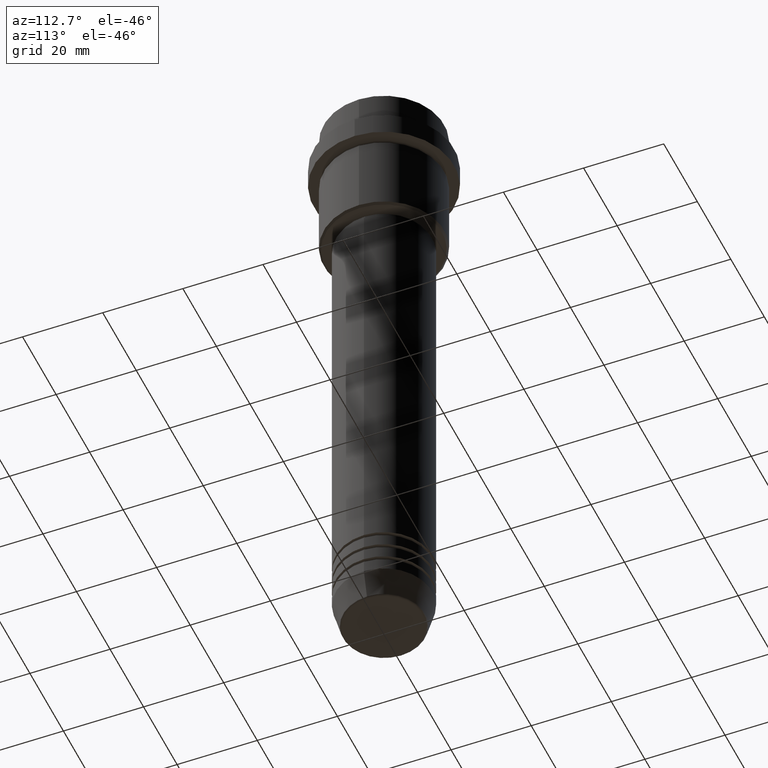
[diagram: clean part render]
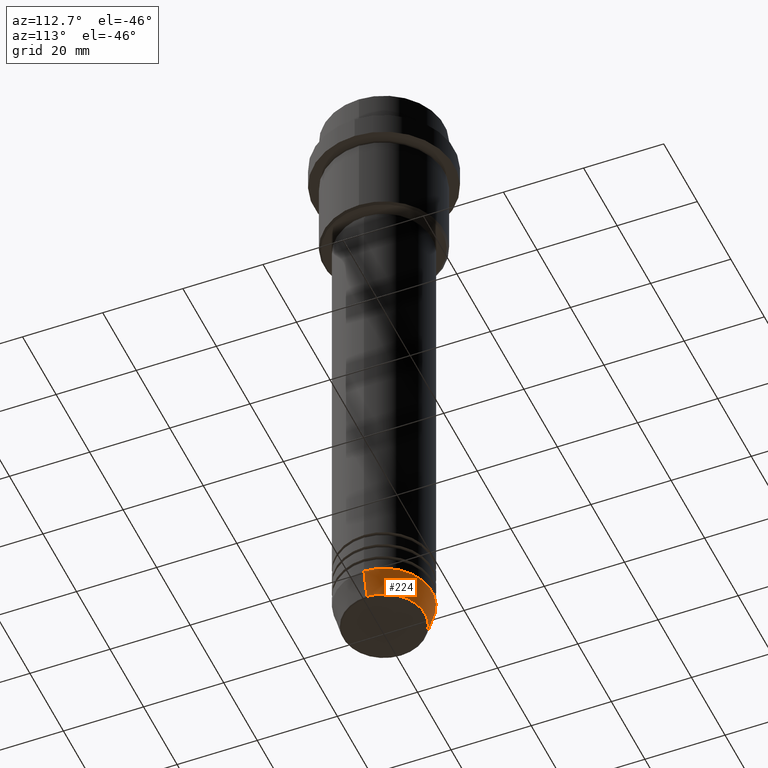
[diagram: same view with one face highlighted and labeled with its STEP entity id]
A machine part, auxiliary view. The second image highlights one B-rep face of the part: STEP entity #224.
In plain terms, the highlighted conical surface has half-angle 15 deg.
Its self-contained STEP definition (entity closure, byte-faithful):
#16 = VERTEX_POINT ( 'NONE', #798 ) ;
#50 = DIRECTION ( 'NONE',  ( 0.2588190451025213501, 0.000000000000000000, 0.9659258262890680902 ) ) ;
#105 = CIRCLE ( 'NONE', #173, 12.00000000000000000 ) ;
#112 = EDGE_CURVE ( 'NONE', #939, #174, #1350, .T. ) ;
#168 = DIRECTION ( 'NONE',  ( -0.2588190451025213501, 3.169619151431772337E-17, 0.9659258262890680902 ) ) ;
#173 = AXIS2_PLACEMENT_3D ( 'NONE', #659, #551, #1308 ) ;
#174 = VERTEX_POINT ( 'NONE', #856 ) ;
#224 = ADVANCED_FACE ( 'NONE', ( #1386 ), #1200, .T. ) ;
#242 = VECTOR ( 'NONE', #50, 1000.000000000000000 ) ;
#260 = CARTESIAN_POINT ( 'NONE',  ( -12.00000000000000000, 1.469576158976823947E-15, -154.0000000000000000 ) ) ;
#269 = AXIS2_PLACEMENT_3D ( 'NONE', #1351, #1238, #1152 ) ;
#319 = EDGE_CURVE ( 'NONE', #174, #16, #105, .T. ) ;
#322 = CARTESIAN_POINT ( 'NONE',  ( -10.22365507213719837, 1.360806402472383336E-15, -160.6294095225512422 ) ) ;
#344 = VERTEX_POINT ( 'NONE', #322 ) ;
#356 = ORIENTED_EDGE ( 'NONE', *, *, #987, .T. ) ;
#551 = DIRECTION ( 'NONE',  ( -0.000000000000000000, -0.000000000000000000, 1.000000000000000000 ) ) ;
#638 = CARTESIAN_POINT ( 'NONE',  ( 0.000000000000000000, 0.000000000000000000, -154.0000000000000000 ) ) ;
#659 = CARTESIAN_POINT ( 'NONE',  ( 0.000000000000000000, 0.000000000000000000, -154.0000000000000000 ) ) ;
#663 = ORIENTED_EDGE ( 'NONE', *, *, #319, .F. ) ;
#744 = AXIS2_PLACEMENT_3D ( 'NONE', #638, #1161, #1048 ) ;
#789 = EDGE_LOOP ( 'NONE', ( #1105, #356, #663, #978 ) ) ;
#798 = CARTESIAN_POINT ( 'NONE',  ( -12.00000000000000000, 1.469576158976823947E-15, -154.0000000000000000 ) ) ;
#856 = CARTESIAN_POINT ( 'NONE',  ( 12.00000000000000000, 0.000000000000000000, -154.0000000000000000 ) ) ;
#939 = VERTEX_POINT ( 'NONE', #946 ) ;
#946 = CARTESIAN_POINT ( 'NONE',  ( 10.22365507213719660, 0.000000000000000000, -160.6294095225512422 ) ) ;
#978 = ORIENTED_EDGE ( 'NONE', *, *, #112, .F. ) ;
#981 = VECTOR ( 'NONE', #168, 1000.000000000000000 ) ;
#983 = CIRCLE ( 'NONE', #269, 10.22365507213719660 ) ;
#987 = EDGE_CURVE ( 'NONE', #344, #16, #1240, .T. ) ;
#1048 = DIRECTION ( 'NONE',  ( 1.000000000000000000, 0.000000000000000000, 0.000000000000000000 ) ) ;
#1105 = ORIENTED_EDGE ( 'NONE', *, *, #1339, .T. ) ;
#1152 = DIRECTION ( 'NONE',  ( 1.000000000000000000, 0.000000000000000000, 0.000000000000000000 ) ) ;
#1161 = DIRECTION ( 'NONE',  ( -0.000000000000000000, -0.000000000000000000, 1.000000000000000000 ) ) ;
#1200 = CONICAL_SURFACE ( 'NONE', #744, 12.00000000000000000, 0.2617993877991500740 ) ;
#1238 = DIRECTION ( 'NONE',  ( -0.000000000000000000, -0.000000000000000000, 1.000000000000000000 ) ) ;
#1240 = LINE ( 'NONE', #260, #981 ) ;
#1308 = DIRECTION ( 'NONE',  ( 1.000000000000000000, 0.000000000000000000, 0.000000000000000000 ) ) ;
#1339 = EDGE_CURVE ( 'NONE', #939, #344, #983, .T. ) ;
#1345 = CARTESIAN_POINT ( 'NONE',  ( 12.00000000000000000, 0.000000000000000000, -154.0000000000000000 ) ) ;
#1350 = LINE ( 'NONE', #1345, #242 ) ;
#1351 = CARTESIAN_POINT ( 'NONE',  ( 0.000000000000000000, 0.000000000000000000, -160.6294095225512422 ) ) ;
#1386 = FACE_OUTER_BOUND ( 'NONE', #789, .T. ) ;